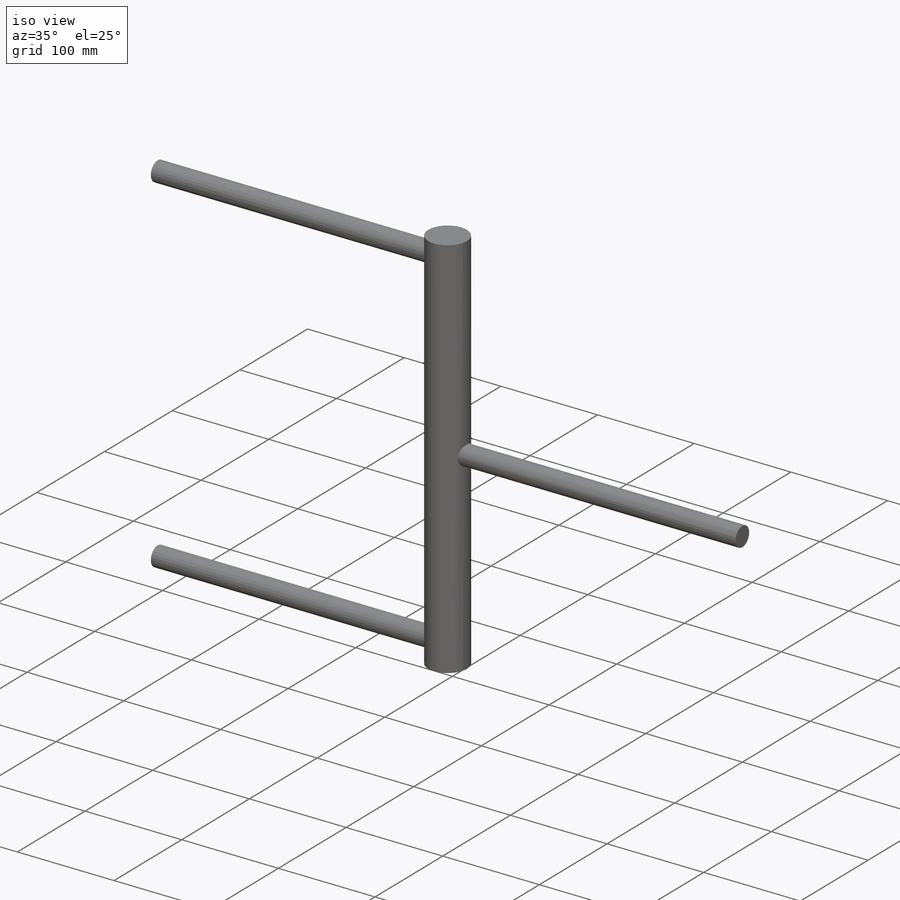
[diagram: iso view]
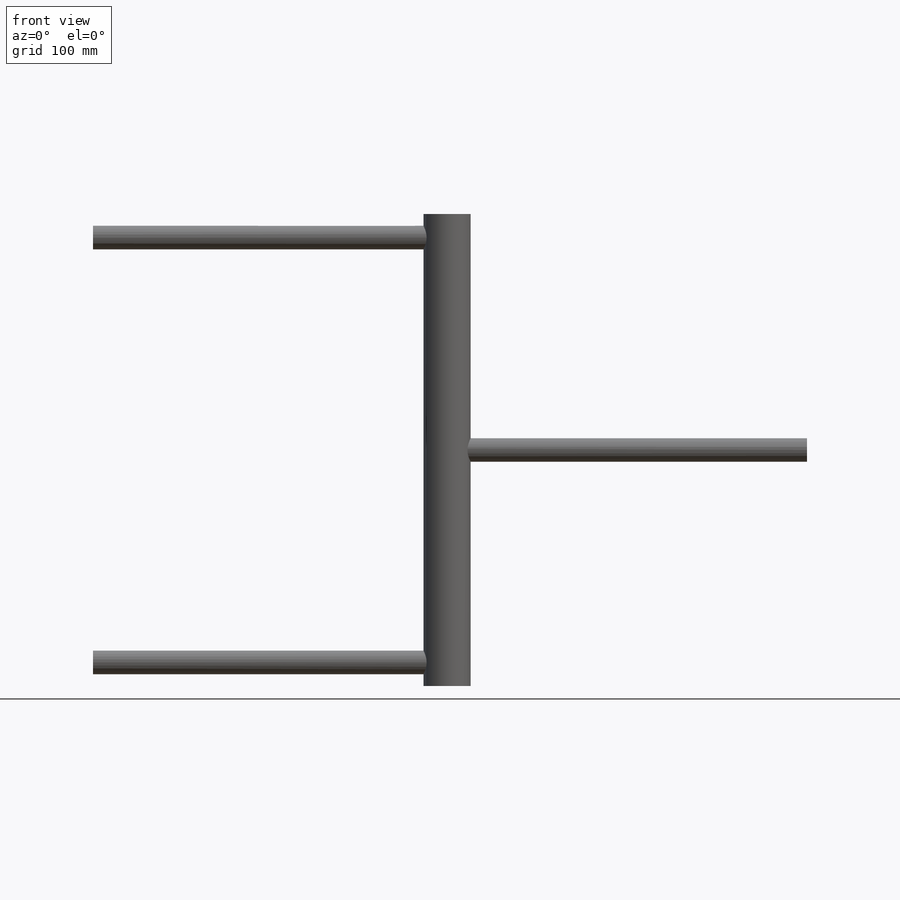
[diagram: front view]
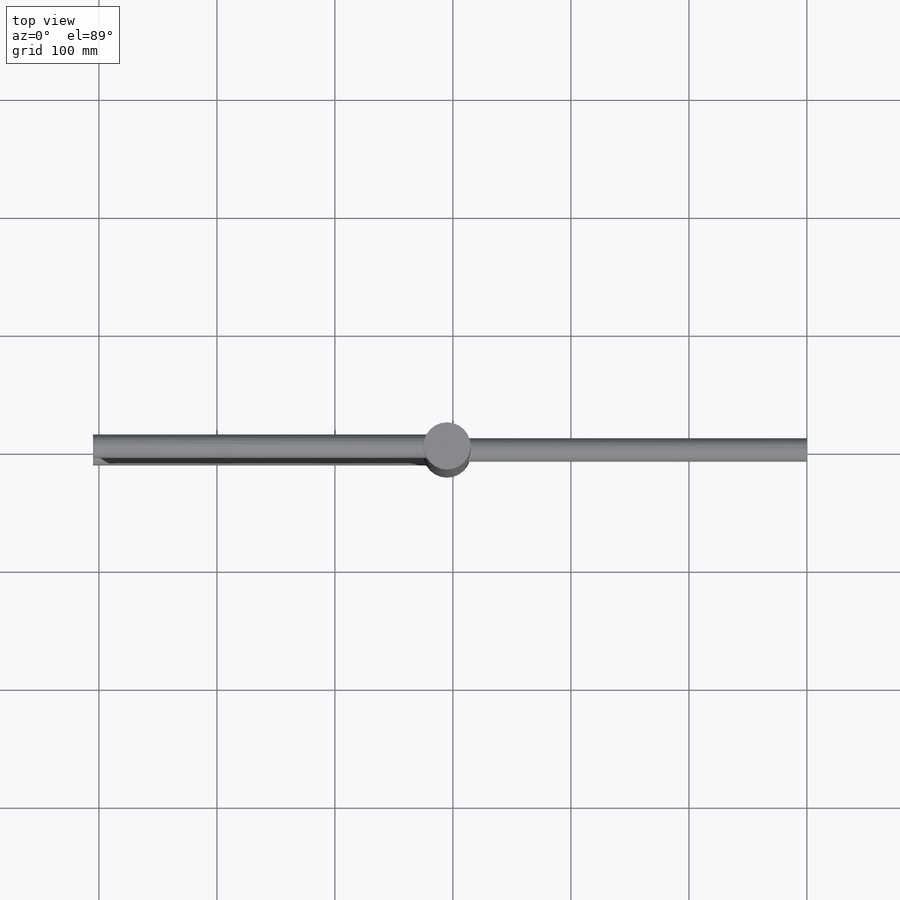
[diagram: top view]
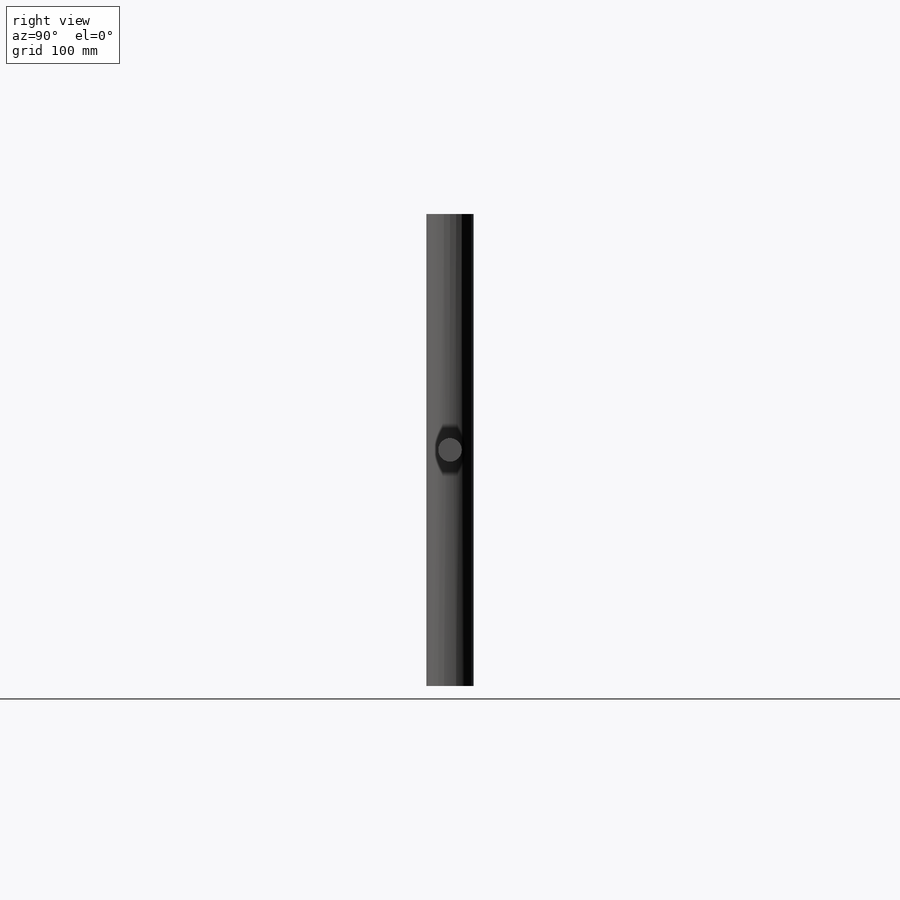
[diagram: right view]
SOLIDWORKS PART (.sldprt)
format: sldprt  version: not decoded by parser v0  size: 138,752 bytes
history: native  units: mm
features: sketch x6, plane x4, sweep x2, material x1, extrude x1, mirror x1 (+13 scaffold rows collapsed)
feature tree (28):
  scaffold x13  (default folders/planes/origin — collapsed)
  material  "Material <sin especificar>"
  plane  "Alzado"
  plane  "Planta"
  plane  "Vista lateral"
  sketch  "Croquis3"  dims[D1=300.0mm]
  sketch  "Croquis4"  dims[D1=4.0mm]
  sweep  "Barrer2"
  sketch  "Croquis5"  dims[c1.D2=200.0mm c1.D1=230.0mm c2.D2=230.0mm c2.D1=300.0mm c3.D2=300.0mm c3.D1=15.0mm c4.D2=5.0mm]
  extrude  "Saliente-Extruir2"  Depth=200mm
  plane  "Plano1"  Offset=180mm
  sketch  "Croquis3D2"  dims[c1.D1=~81.721758mm c2.D1=100.0mm c3.D1=80.0mm]
  sketch  "Croquis7"  dims[D1=300.0mm]
  sketch  "Croquis3D3"  dims[c1.D1=~44.985363mm c2.D1=50.0mm c3.D1=60.0mm]
  sweep  "Barrer3"
  mirror  "Simetría2"
decode coverage: 7 of 10 modeling features carry decoded parameters
note: ~ marks probable driven/reference dimensions
note: suppression state not decoded; provenance and decode notes live in map.json
